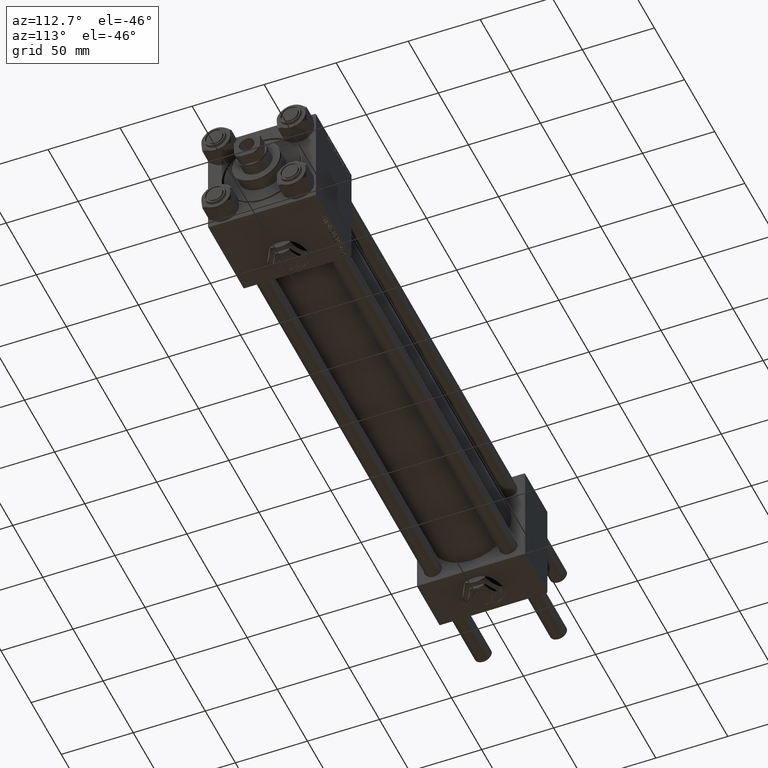
[diagram: clean part render]
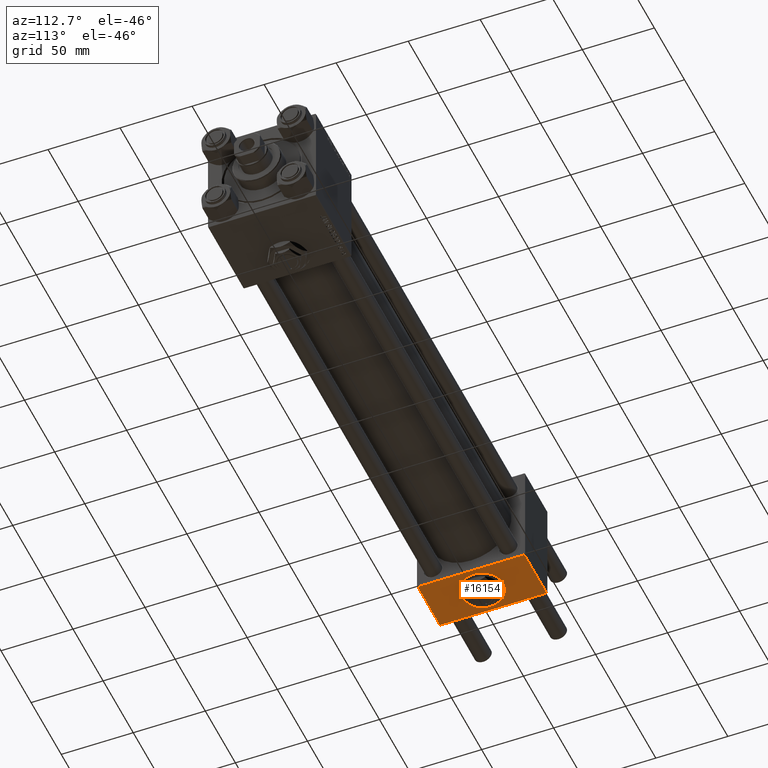
[diagram: same view with one face highlighted and labeled with its STEP entity id]
A machine part, auxiliary view. The second image highlights one B-rep face of the part: STEP entity #16154.
In plain terms, the highlighted planar face has unit normal (0, 0, -1).
Its self-contained STEP definition (entity closure, byte-faithful):
#797 = EDGE_CURVE ( 'NONE', #42971, #14142, #39370, .T. ) ;
#2013 = VERTEX_POINT ( 'NONE', #28564 ) ;
#2904 = ORIENTED_EDGE ( 'NONE', *, *, #797, .F. ) ;
#2988 = CARTESIAN_POINT ( 'NONE',  ( 18.50000000000000000, 1.999870792976790439E-15, -37.50000000000000711 ) ) ;
#5352 = AXIS2_PLACEMENT_3D ( 'NONE', #5443, #32696, #36373 ) ;
#5443 = CARTESIAN_POINT ( 'NONE',  ( 18.50000000000000000, 1.999870792976790439E-15, -37.50000000000000711 ) ) ;
#5875 = LINE ( 'NONE', #13473, #13467 ) ;
#6122 = CARTESIAN_POINT ( 'NONE',  ( 0.000000000000000000, -37.00000000000002132, -37.50000000000000711 ) ) ;
#6771 = ORIENTED_EDGE ( 'NONE', *, *, #6877, .F. ) ;
#6877 = EDGE_CURVE ( 'NONE', #22828, #31571, #46509, .T. ) ;
#8033 = CARTESIAN_POINT ( 'NONE',  ( 37.00000000000000000, -37.00000000000002132, -37.50000000000000711 ) ) ;
#8381 = ORIENTED_EDGE ( 'NONE', *, *, #28989, .T. ) ;
#9535 = DIRECTION ( 'NONE',  ( 0.000000000000000000, -1.000000000000000000, -9.251858538542972814E-17 ) ) ;
#10454 = VECTOR ( 'NONE', #19079, 1000.000000000000000 ) ;
#12106 = CARTESIAN_POINT ( 'NONE',  ( 0.000000000000000000, 37.49999999999999289, -37.50000000000000000 ) ) ;
#13197 = CARTESIAN_POINT ( 'NONE',  ( 18.50000000000000000, 15.00000000000000178, -37.50000000000000711 ) ) ;
#13467 = VECTOR ( 'NONE', #9535, 1000.000000000000000 ) ;
#13473 = CARTESIAN_POINT ( 'NONE',  ( 37.00000000000000000, 37.49999999999999289, -37.50000000000000000 ) ) ;
#14142 = VERTEX_POINT ( 'NONE', #46073 ) ;
#14630 = CARTESIAN_POINT ( 'NONE',  ( 37.00000000000000000, 36.99999999999997868, -37.50000000000000000 ) ) ;
#15261 = PLANE ( 'NONE',  #34240 ) ;
#16154 = ADVANCED_FACE ( 'NONE', ( #51112, #18416 ), #15261, .T. ) ;
#16576 = DIRECTION ( 'NONE',  ( 0.000000000000000000, -1.000000000000000000, -9.251858538542972814E-17 ) ) ;
#17902 = LINE ( 'NONE', #6122, #18923 ) ;
#18416 = FACE_OUTER_BOUND ( 'NONE', #25633, .T. ) ;
#18923 = VECTOR ( 'NONE', #34153, 1000.000000000000000 ) ;
#19079 = DIRECTION ( 'NONE',  ( 1.000000000000000000, 0.000000000000000000, 0.000000000000000000 ) ) ;
#19750 = ORIENTED_EDGE ( 'NONE', *, *, #36509, .F. ) ;
#19762 = EDGE_LOOP ( 'NONE', ( #6771, #19750 ) ) ;
#20493 = ORIENTED_EDGE ( 'NONE', *, *, #45825, .T. ) ;
#20770 = CARTESIAN_POINT ( 'NONE',  ( 0.000000000000000000, 36.99999999999997868, -37.50000000000000000 ) ) ;
#22828 = VERTEX_POINT ( 'NONE', #13197 ) ;
#24884 = ORIENTED_EDGE ( 'NONE', *, *, #28519, .T. ) ;
#25633 = EDGE_LOOP ( 'NONE', ( #2904, #24884, #8381, #20493 ) ) ;
#28519 = EDGE_CURVE ( 'NONE', #42971, #2013, #50477, .T. ) ;
#28564 = CARTESIAN_POINT ( 'NONE',  ( 37.00000000000000000, 36.99999999999997868, -37.50000000000000000 ) ) ;
#28989 = EDGE_CURVE ( 'NONE', #2013, #48926, #5875, .T. ) ;
#29350 = VECTOR ( 'NONE', #16576, 1000.000000000000000 ) ;
#31240 = CARTESIAN_POINT ( 'NONE',  ( 37.00000000000000000, 37.49999999999999289, -37.50000000000000000 ) ) ;
#31571 = VERTEX_POINT ( 'NONE', #35404 ) ;
#32696 = DIRECTION ( 'NONE',  ( 0.000000000000000000, -1.734723475976806848E-16, -1.000000000000000000 ) ) ;
#34153 = DIRECTION ( 'NONE',  ( -1.000000000000000000, 0.000000000000000000, 0.000000000000000000 ) ) ;
#34240 = AXIS2_PLACEMENT_3D ( 'NONE', #31240, #43276, #47433 ) ;
#34713 = DIRECTION ( 'NONE',  ( 0.000000000000000000, 1.000000000000000000, 0.000000000000000000 ) ) ;
#35404 = CARTESIAN_POINT ( 'NONE',  ( 18.50000000000000355, -14.99999999999999822, -37.50000000000000711 ) ) ;
#36373 = DIRECTION ( 'NONE',  ( 0.000000000000000000, 1.000000000000000000, 0.000000000000000000 ) ) ;
#36509 = EDGE_CURVE ( 'NONE', #31571, #22828, #50481, .T. ) ;
#37355 = AXIS2_PLACEMENT_3D ( 'NONE', #2988, #43323, #34713 ) ;
#39370 = LINE ( 'NONE', #12106, #29350 ) ;
#42971 = VERTEX_POINT ( 'NONE', #20770 ) ;
#43276 = DIRECTION ( 'NONE',  ( 0.000000000000000000, 9.251858538542972814E-17, -1.000000000000000000 ) ) ;
#43323 = DIRECTION ( 'NONE',  ( 0.000000000000000000, -1.734723475976806848E-16, -1.000000000000000000 ) ) ;
#45825 = EDGE_CURVE ( 'NONE', #48926, #14142, #17902, .T. ) ;
#46073 = CARTESIAN_POINT ( 'NONE',  ( 0.000000000000000000, -37.00000000000002132, -37.50000000000000711 ) ) ;
#46509 = CIRCLE ( 'NONE', #37355, 15.00000000000000000 ) ;
#47433 = DIRECTION ( 'NONE',  ( 0.000000000000000000, 1.000000000000000000, 9.251858538542972814E-17 ) ) ;
#48926 = VERTEX_POINT ( 'NONE', #8033 ) ;
#50477 = LINE ( 'NONE', #14630, #10454 ) ;
#50481 = CIRCLE ( 'NONE', #5352, 15.00000000000000000 ) ;
#51112 = FACE_BOUND ( 'NONE', #19762, .T. ) ;